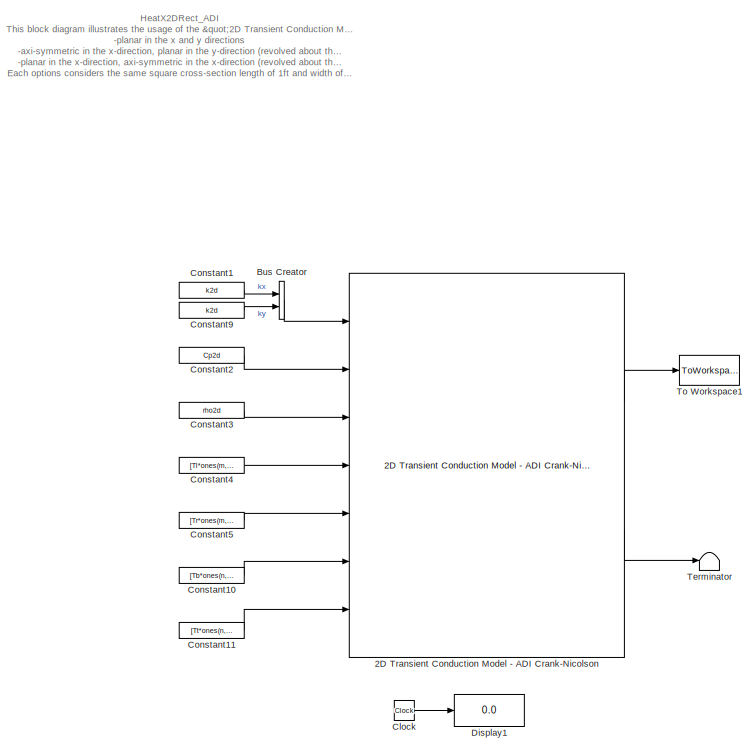
[diagram: root canvas - part 1/2, left side, full height]
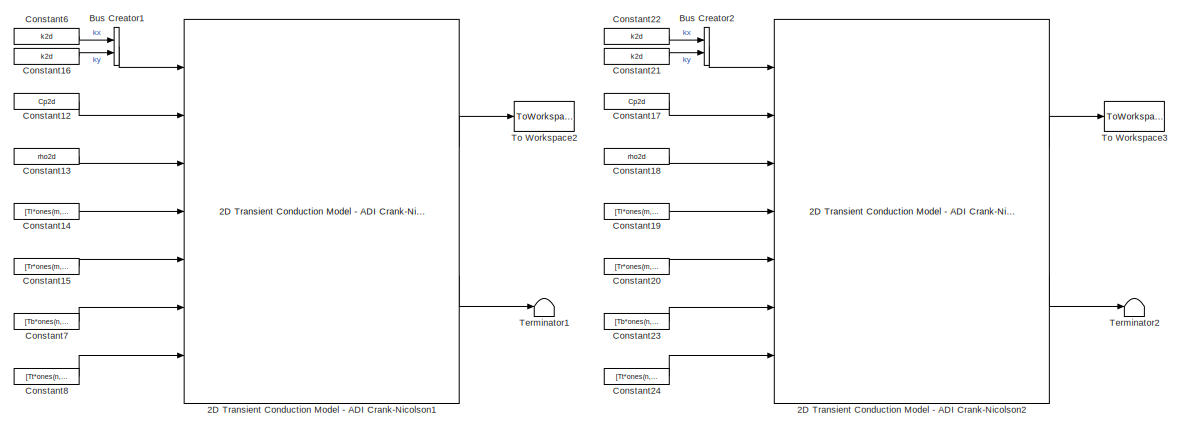
[diagram: root canvas - part 2/2, middle right region]
MODEL slx_35b06406a500
KIND model
CONFIG AbsTol = auto
CONFIG FixedStep = dt
CONFIG MaxStep = auto
CONFIG MinStep = auto
CONFIG RelTol = 1e-3
CONFIG SampleTimeConstraint = Unconstrained
CONFIG Solver = FixedStepDiscrete
CONFIG SolverMode = Auto
CONFIG SolverName = FixedStepDiscrete
CONFIG StartTime = 0.0
CONFIG StopTime = tsim
BLOCK [Reference] 2D Transient Conduction Model - ADI Crank-Nicolson  REF=lib_Conduction_2DCondADI/2D Transient Conduction Model - ADI Crank-Nicolson
  BN_M = double(gcb)
  Ports = [7, 2]
  SourceBlock = lib_Conduction_2DCondADI/2D Transient Conduction Model - ADI Crank-Nicolson
  SourceType = TSAT: 2-D Transient Conduction Model - ADI Crank-Nicolson Block
  T0_M = T02d
  condB_M = off
  condL_M = off
  condR_M = off
  condT_M = off
  convB_M = on
  convL_M = on
  convR_M = on
  convT_M = on
  dt_M = dt
  radB_M = off
  radL_M = off
  radR_M = off
  radT_M = off
  shape_M = Planar in both directions
  x_M = x
  y_M = y0
BLOCK [Reference] 2D Transient Conduction Model - ADI Crank-Nicolson1  REF=lib_Conduction_2DCondADI/2D Transient Conduction Model - ADI Crank-Nicolson
  BN_M = double(gcb)
  Ports = [7, 2]
  SourceBlock = lib_Conduction_2DCondADI/2D Transient Conduction Model - ADI Crank-Nicolson
  SourceType = TSAT: 2-D Transient Conduction Model - ADI Crank-Nicolson Block
  T0_M = T02d
  condB_M = off
  condL_M = off
  condR_M = off
  condT_M = off
  convB_M = on
  convL_M = on
  convR_M = on
  convT_M = on
  dt_M = dt
  radB_M = off
  radL_M = off
  radR_M = off
  radT_M = off
  shape_M = Axi-Symmetric in x-direction, Planar in y-direction
  x_M = x
  y_M = y0
BLOCK [Reference] 2D Transient Conduction Model - ADI Crank-Nicolson2  REF=lib_Conduction_2DCondADI/2D Transient Conduction Model - ADI Crank-Nicolson
  BN_M = double(gcb)
  Ports = [7, 2]
  SourceBlock = lib_Conduction_2DCondADI/2D Transient Conduction Model - ADI Crank-Nicolson
  SourceType = TSAT: 2-D Transient Conduction Model - ADI Crank-Nicolson Block
  T0_M = T02d
  condB_M = off
  condL_M = off
  condR_M = off
  condT_M = off
  convB_M = on
  convL_M = on
  convR_M = on
  convT_M = on
  dt_M = dt
  radB_M = off
  radL_M = off
  radR_M = off
  radT_M = off
  shape_M = Planar in x-direction, Axi-symmetric in y-direction
  x_M = x
  y_M = y0
BLOCK [BusCreator] Bus Creator
  DisplayOption = bar
  Inputs = 2
  Ports = [2, 1]
BLOCK [BusCreator] Bus Creator1
  DisplayOption = bar
  Inputs = 2
  Ports = [2, 1]
BLOCK [BusCreator] Bus Creator2
  DisplayOption = bar
  Inputs = 2
  Ports = [2, 1]
BLOCK [Clock] Clock
BLOCK [Constant] Constant1
  Value = k2d
BLOCK [Constant] Constant10
  Value = [Tb*ones(n,1) hb*ones(n,1)]
BLOCK [Constant] Constant11
  Value = [Tt*ones(n,1) ht*ones(n,1)]
BLOCK [Constant] Constant12
  Value = Cp2d
BLOCK [Constant] Constant13
  Value = rho2d
BLOCK [Constant] Constant14
  Value = [Tl*ones(m,1) hl*ones(m,1)]
BLOCK [Constant] Constant15
  Value = [Tr*ones(m,1) hr*ones(m,1)]
BLOCK [Constant] Constant16
  Value = k2d
BLOCK [Constant] Constant17
  Value = Cp2d
BLOCK [Constant] Constant18
  Value = rho2d
BLOCK [Constant] Constant19
  Value = [Tl*ones(m,1) hl*ones(m,1)]
BLOCK [Constant] Constant2
  Value = Cp2d
BLOCK [Constant] Constant20
  Value = [Tr*ones(m,1) hr*ones(m,1)]
BLOCK [Constant] Constant21
  Value = k2d
BLOCK [Constant] Constant22
  Value = k2d
BLOCK [Constant] Constant23
  Value = [Tb*ones(n,1) hb*ones(n,1)]
BLOCK [Constant] Constant24
  Value = [Tt*ones(n,1) ht*ones(n,1)]
BLOCK [Constant] Constant3
  Value = rho2d
BLOCK [Constant] Constant4
  Value = [Tl*ones(m,1) hl*ones(m,1)]
BLOCK [Constant] Constant5
  Value = [Tr*ones(m,1) hr*ones(m,1)]
BLOCK [Constant] Constant6
  Value = k2d
BLOCK [Constant] Constant7
  Value = [Tb*ones(n,1) hb*ones(n,1)]
BLOCK [Constant] Constant8
  Value = [Tt*ones(n,1) ht*ones(n,1)]
BLOCK [Constant] Constant9
  Value = k2d
BLOCK [Display] Display1
  Decimation = 1
  Ports = [1]
BLOCK [Terminator] Terminator
BLOCK [Terminator] Terminator1
BLOCK [Terminator] Terminator2
BLOCK [ToWorkspace] To Workspace1
  FixptAsFi = on
  MaxDataPoints = inf
  Ports = [1]
  SampleTime = -1
  Save2DSignal = 3-D array (concatenate along third dimension)
  SaveFormat = Timeseries
  VariableName = T2d_planar
BLOCK [ToWorkspace] To Workspace2
  FixptAsFi = on
  MaxDataPoints = inf
  Ports = [1]
  SampleTime = -1
  Save2DSignal = 3-D array (concatenate along third dimension)
  SaveFormat = Timeseries
  VariableName = T2d_axiy
BLOCK [ToWorkspace] To Workspace3
  FixptAsFi = on
  MaxDataPoints = inf
  Ports = [1]
  SampleTime = -1
  Save2DSignal = 3-D array (concatenate along third dimension)
  SaveFormat = Timeseries
  VariableName = T2d_axix
ANNOTATION (root): HeatX2DRect_ADI This block diagram illustrates the usage of the "2D Transient Conduction Model" blocks for different shape options: -planar in the x and y directions -axi-symmetric in the x-direction, planar in the y-direction (revolved about the y-axis) -planar in the x-direction, axi-symmetric in the x-direction (revolved about the x-axis) Each options considers the same square cross-section len...<+425ch>
LINE 2D Transient Conduction Model - ADI Crank-Nicolson1:1 -> To Workspace2:1
LINE 2D Transient Conduction Model - ADI Crank-Nicolson1:2 -> Terminator1:1
LINE 2D Transient Conduction Model - ADI Crank-Nicolson2:1 -> To Workspace3:1
LINE 2D Transient Conduction Model - ADI Crank-Nicolson2:2 -> Terminator2:1
LINE 2D Transient Conduction Model - ADI Crank-Nicolson:1 -> To Workspace1:1
LINE 2D Transient Conduction Model - ADI Crank-Nicolson:2 -> Terminator:1
LINE Bus Creator1:1 -> 2D Transient Conduction Model - ADI Crank-Nicolson1:1
LINE Bus Creator2:1 -> 2D Transient Conduction Model - ADI Crank-Nicolson2:1
LINE Bus Creator:1 -> 2D Transient Conduction Model - ADI Crank-Nicolson:1
LINE Clock:1 -> Display1:1
LINE Constant10:1 -> 2D Transient Conduction Model - ADI Crank-Nicolson:6
LINE Constant11:1 -> 2D Transient Conduction Model - ADI Crank-Nicolson:7
LINE Constant12:1 -> 2D Transient Conduction Model - ADI Crank-Nicolson1:2
LINE Constant13:1 -> 2D Transient Conduction Model - ADI Crank-Nicolson1:3
LINE Constant14:1 -> 2D Transient Conduction Model - ADI Crank-Nicolson1:4
LINE Constant15:1 -> 2D Transient Conduction Model - ADI Crank-Nicolson1:5
LINE Constant16:1 -> Bus Creator1:2
LINE Constant17:1 -> 2D Transient Conduction Model - ADI Crank-Nicolson2:2
LINE Constant18:1 -> 2D Transient Conduction Model - ADI Crank-Nicolson2:3
LINE Constant19:1 -> 2D Transient Conduction Model - ADI Crank-Nicolson2:4
LINE Constant1:1 -> Bus Creator:1
LINE Constant20:1 -> 2D Transient Conduction Model - ADI Crank-Nicolson2:5
LINE Constant21:1 -> Bus Creator2:2
LINE Constant22:1 -> Bus Creator2:1
LINE Constant23:1 -> 2D Transient Conduction Model - ADI Crank-Nicolson2:6
LINE Constant24:1 -> 2D Transient Conduction Model - ADI Crank-Nicolson2:7
LINE Constant2:1 -> 2D Transient Conduction Model - ADI Crank-Nicolson:2
LINE Constant3:1 -> 2D Transient Conduction Model - ADI Crank-Nicolson:3
LINE Constant4:1 -> 2D Transient Conduction Model - ADI Crank-Nicolson:4
LINE Constant5:1 -> 2D Transient Conduction Model - ADI Crank-Nicolson:5
LINE Constant6:1 -> Bus Creator1:1
LINE Constant7:1 -> 2D Transient Conduction Model - ADI Crank-Nicolson1:6
LINE Constant8:1 -> 2D Transient Conduction Model - ADI Crank-Nicolson1:7
LINE Constant9:1 -> Bus Creator:2
